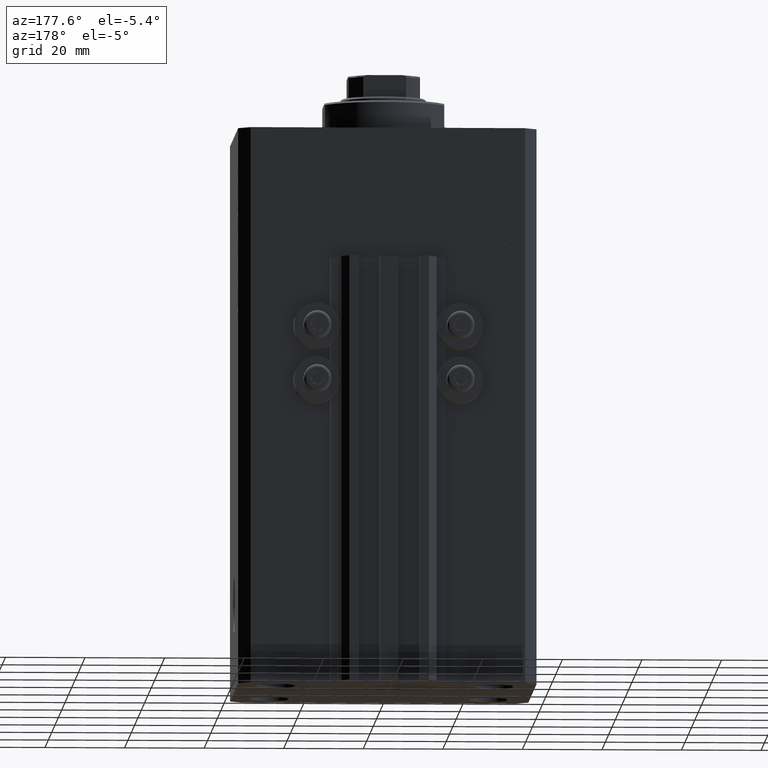
[diagram: clean part render]
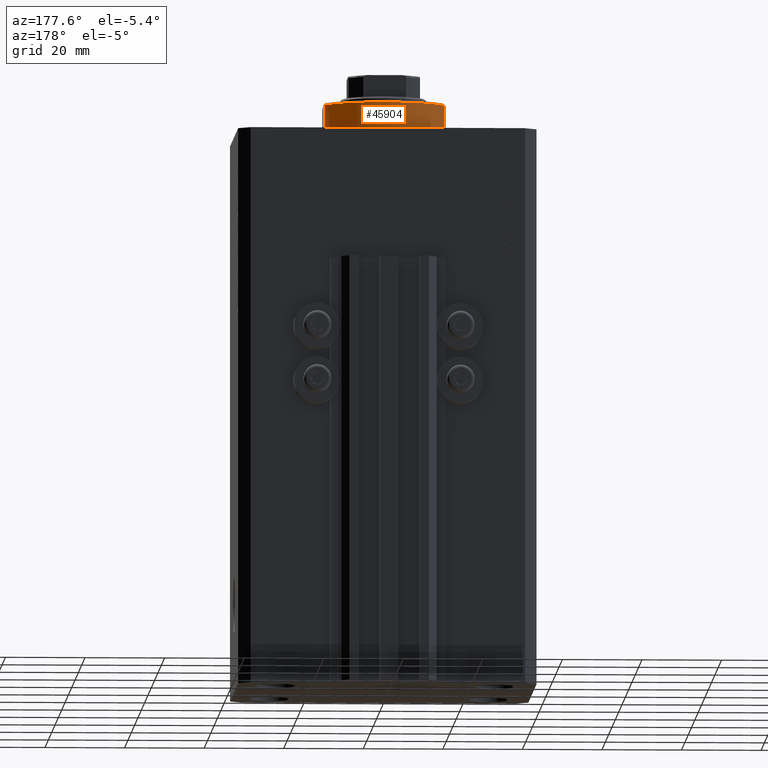
[diagram: same view with one face highlighted and labeled with its STEP entity id]
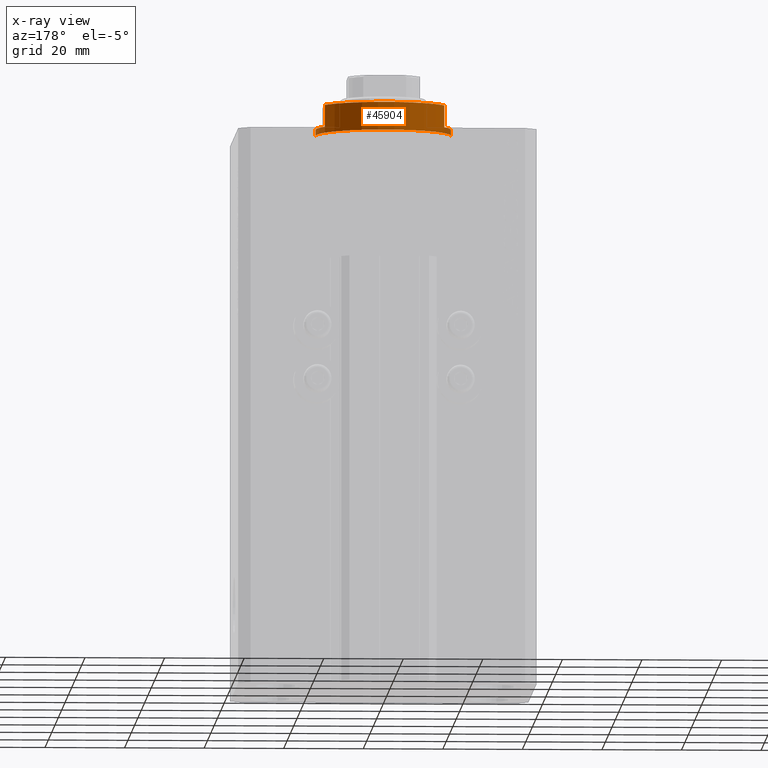
[diagram: x-ray of the same camera — body ghosted, the highlighted face saturated]
A machine part, auxiliary view. The second image highlights one B-rep face of the part: STEP entity #45904.
The next image is the same camera in x-ray: the body ghosted, the highlighted face saturated — about 3% of this face is hidden behind the body in this view.
In plain terms, the highlighted cylindrical surface (partial cylindrical patch) has radius 17 mm, axis along (0, 0, -1).
Its self-contained STEP definition (entity closure, byte-faithful):
#303 = CARTESIAN_POINT ( 'NONE',  ( -17.00000000000000000, 2.081899558550500280E-15, -0.5000000000000004441 ) ) ;
#434 = VECTOR ( 'NONE', #36922, 1000.000000000000000 ) ;
#753 = FACE_OUTER_BOUND ( 'NONE', #30079, .T. ) ;
#870 = ORIENTED_EDGE ( 'NONE', *, *, #29152, .F. ) ;
#965 = DIRECTION ( 'NONE',  ( 0.000000000000000000, 0.000000000000000000, -1.000000000000000000 ) ) ;
#1686 = CIRCLE ( 'NONE', #2441, 17.00000000000000000 ) ;
#1902 = EDGE_CURVE ( 'NONE', #21019, #39442, #45104, .T. ) ;
#2435 = CIRCLE ( 'NONE', #29123, 17.00000000000000000 ) ;
#2441 = AXIS2_PLACEMENT_3D ( 'NONE', #9298, #35323, #17420 ) ;
#3357 = AXIS2_PLACEMENT_3D ( 'NONE', #8347, #965, #18405 ) ;
#3449 = VERTEX_POINT ( 'NONE', #10601 ) ;
#4050 = DIRECTION ( 'NONE',  ( -0.000000000000000000, -0.000000000000000000, 1.000000000000000000 ) ) ;
#4634 = ORIENTED_EDGE ( 'NONE', *, *, #15087, .T. ) ;
#6690 = DIRECTION ( 'NONE',  ( -1.000000000000000000, 0.000000000000000000, 0.000000000000000000 ) ) ;
#7759 = VECTOR ( 'NONE', #4050, 1000.000000000000000 ) ;
#8347 = CARTESIAN_POINT ( 'NONE',  ( 0.000000000000000000, 0.000000000000000000, -2.000000000000000000 ) ) ;
#8782 = CARTESIAN_POINT ( 'NONE',  ( 17.00000000000000000, 0.000000000000000000, -2.000000000000000000 ) ) ;
#9195 = VERTEX_POINT ( 'NONE', #12524 ) ;
#9298 = CARTESIAN_POINT ( 'NONE',  ( 0.000000000000000000, 0.000000000000000000, -7.500000000000007105 ) ) ;
#10601 = CARTESIAN_POINT ( 'NONE',  ( 17.00000000000000000, 0.000000000000000000, -0.5000000000000004441 ) ) ;
#12245 = ORIENTED_EDGE ( 'NONE', *, *, #34749, .F. ) ;
#12417 = CYLINDRICAL_SURFACE ( 'NONE', #34084, 17.00000000000000000 ) ;
#12524 = CARTESIAN_POINT ( 'NONE',  ( 14.99999999999999645, 8.000000000000003553, -2.000000000000000000 ) ) ;
#12775 = CARTESIAN_POINT ( 'NONE',  ( -17.00000000000000000, 2.081899558550500280E-15, -2.000000000000000000 ) ) ;
#13112 = CARTESIAN_POINT ( 'NONE',  ( -17.00000000000000000, 2.081899558550500280E-15, -8.000000000000000000 ) ) ;
#13736 = ORIENTED_EDGE ( 'NONE', *, *, #25443, .T. ) ;
#14140 = VERTEX_POINT ( 'NONE', #26638 ) ;
#14386 = ORIENTED_EDGE ( 'NONE', *, *, #24947, .T. ) ;
#15018 = VECTOR ( 'NONE', #17683, 1000.000000000000000 ) ;
#15087 = EDGE_CURVE ( 'NONE', #36715, #14140, #33170, .T. ) ;
#15399 = ORIENTED_EDGE ( 'NONE', *, *, #41847, .F. ) ;
#16227 = DIRECTION ( 'NONE',  ( -0.000000000000000000, -0.000000000000000000, 1.000000000000000000 ) ) ;
#17420 = DIRECTION ( 'NONE',  ( -1.000000000000000000, 0.000000000000000000, 0.000000000000000000 ) ) ;
#17683 = DIRECTION ( 'NONE',  ( -0.000000000000000000, -0.000000000000000000, 1.000000000000000000 ) ) ;
#18405 = DIRECTION ( 'NONE',  ( -1.000000000000000000, 0.000000000000000000, 0.000000000000000000 ) ) ;
#18662 = CARTESIAN_POINT ( 'NONE',  ( -15.00000000000000000, 8.000000000000001776, -7.500000000000007105 ) ) ;
#19352 = DIRECTION ( 'NONE',  ( 1.000000000000000000, 0.000000000000000000, 0.000000000000000000 ) ) ;
#20167 = CARTESIAN_POINT ( 'NONE',  ( 0.000000000000000000, 0.000000000000000000, -0.5000000000000004441 ) ) ;
#21019 = VERTEX_POINT ( 'NONE', #12775 ) ;
#24850 = CARTESIAN_POINT ( 'NONE',  ( 0.000000000000000000, 0.000000000000000000, -2.000000000000000000 ) ) ;
#24947 = EDGE_CURVE ( 'NONE', #39442, #3449, #46685, .T. ) ;
#25443 = EDGE_CURVE ( 'NONE', #32776, #36715, #1686, .T. ) ;
#25634 = CARTESIAN_POINT ( 'NONE',  ( 15.00000000000000000, 8.000000000000001776, -7.500000000000007105 ) ) ;
#25778 = CARTESIAN_POINT ( 'NONE',  ( -15.00000000000000000, 8.000000000000001776, -8.000000000000000000 ) ) ;
#26067 = DIRECTION ( 'NONE',  ( -0.000000000000000000, -0.000000000000000000, 1.000000000000000000 ) ) ;
#26243 = ORIENTED_EDGE ( 'NONE', *, *, #37858, .F. ) ;
#26638 = CARTESIAN_POINT ( 'NONE',  ( -14.99999999999999645, 8.000000000000003553, -2.000000000000000000 ) ) ;
#29123 = AXIS2_PLACEMENT_3D ( 'NONE', #24850, #39402, #6690 ) ;
#29152 = EDGE_CURVE ( 'NONE', #9195, #38571, #2435, .T. ) ;
#29293 = LINE ( 'NONE', #37840, #434 ) ;
#30079 = EDGE_LOOP ( 'NONE', ( #12245, #45420, #14386, #26243, #870, #15399, #13736, #4634 ) ) ;
#30446 = DIRECTION ( 'NONE',  ( 1.000000000000000000, 0.000000000000000000, 0.000000000000000000 ) ) ;
#32776 = VERTEX_POINT ( 'NONE', #25634 ) ;
#33170 = LINE ( 'NONE', #25778, #7759 ) ;
#34084 = AXIS2_PLACEMENT_3D ( 'NONE', #44656, #26067, #19352 ) ;
#34159 = VECTOR ( 'NONE', #16227, 1000.000000000000000 ) ;
#34628 = CIRCLE ( 'NONE', #3357, 17.00000000000000000 ) ;
#34749 = EDGE_CURVE ( 'NONE', #21019, #14140, #34628, .T. ) ;
#35323 = DIRECTION ( 'NONE',  ( 0.000000000000000000, 0.000000000000000000, 1.000000000000000000 ) ) ;
#36715 = VERTEX_POINT ( 'NONE', #18662 ) ;
#36765 = LINE ( 'NONE', #42975, #15018 ) ;
#36922 = DIRECTION ( 'NONE',  ( -0.000000000000000000, -0.000000000000000000, 1.000000000000000000 ) ) ;
#37840 = CARTESIAN_POINT ( 'NONE',  ( 17.00000000000000000, 0.000000000000000000, -8.000000000000000000 ) ) ;
#37858 = EDGE_CURVE ( 'NONE', #38571, #3449, #29293, .T. ) ;
#38571 = VERTEX_POINT ( 'NONE', #8782 ) ;
#39402 = DIRECTION ( 'NONE',  ( 0.000000000000000000, 0.000000000000000000, -1.000000000000000000 ) ) ;
#39442 = VERTEX_POINT ( 'NONE', #303 ) ;
#41183 = DIRECTION ( 'NONE',  ( -0.000000000000000000, -0.000000000000000000, -1.000000000000000000 ) ) ;
#41847 = EDGE_CURVE ( 'NONE', #32776, #9195, #36765, .T. ) ;
#42975 = CARTESIAN_POINT ( 'NONE',  ( 15.00000000000000000, 8.000000000000001776, -8.000000000000000000 ) ) ;
#44656 = CARTESIAN_POINT ( 'NONE',  ( 0.000000000000000000, 0.000000000000000000, -8.000000000000000000 ) ) ;
#45104 = LINE ( 'NONE', #13112, #34159 ) ;
#45125 = AXIS2_PLACEMENT_3D ( 'NONE', #20167, #41183, #30446 ) ;
#45420 = ORIENTED_EDGE ( 'NONE', *, *, #1902, .T. ) ;
#45904 = ADVANCED_FACE ( 'NONE', ( #753 ), #12417, .T. ) ;
#46685 = CIRCLE ( 'NONE', #45125, 17.00000000000000000 ) ;